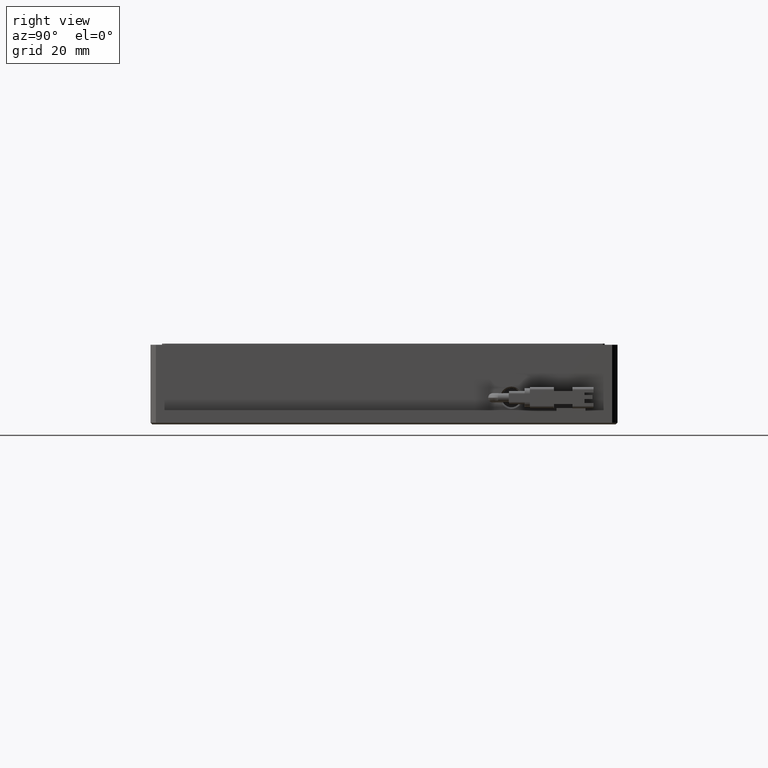
[diagram: clean part render]
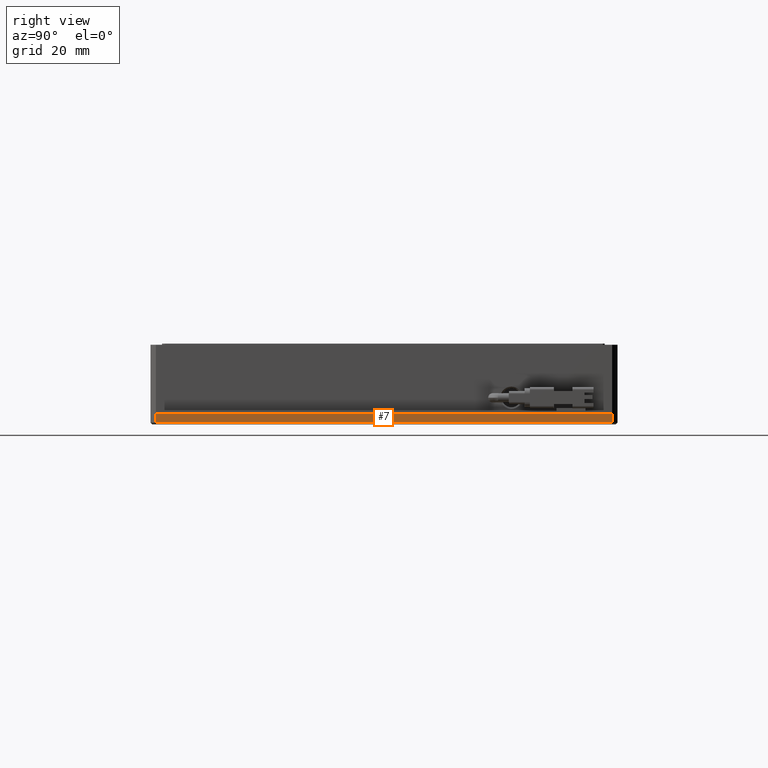
[diagram: same view with one face highlighted and labeled with its STEP entity id]
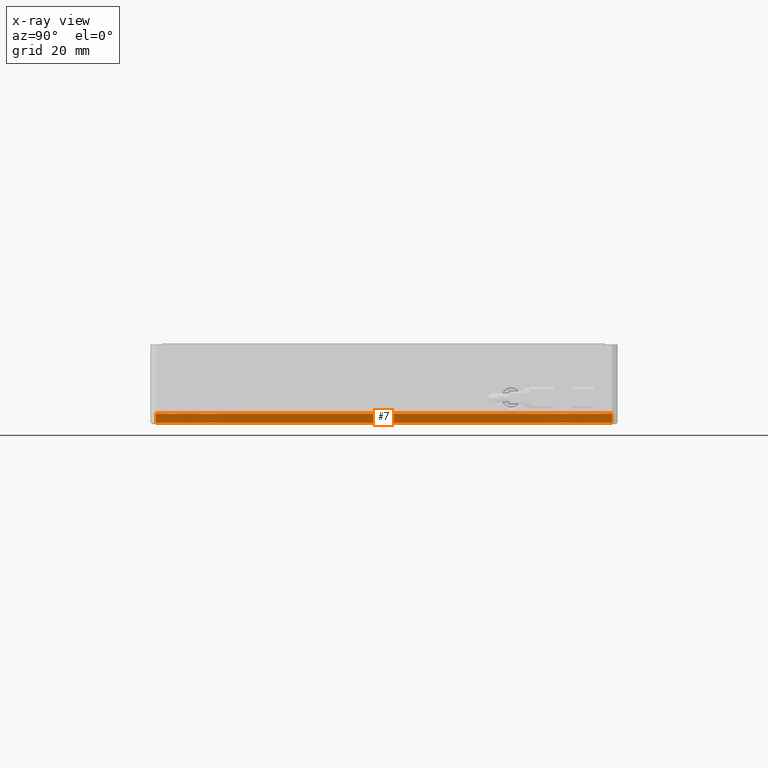
[diagram: x-ray of the same camera — body ghosted, the highlighted face saturated]
A machine part, right view. The second image highlights one B-rep face of the part: STEP entity #7.
The next image is the same camera in x-ray: the body ghosted, the highlighted face saturated — about 0% of this face is hidden behind the body in this view.
In plain terms, the highlighted planar face has unit normal (-1, 0, 0).
Its self-contained STEP definition (entity closure, byte-faithful):
#7 = ADVANCED_FACE ( 'NONE', ( #12453 ), #5397, .F. ) ;
#209 = EDGE_CURVE ( 'NONE', #2793, #6655, #16696, .T. ) ;
#367 = ORIENTED_EDGE ( 'NONE', *, *, #1497, .F. ) ;
#1497 = EDGE_CURVE ( 'NONE', #16233, #9017, #3066, .T. ) ;
#1981 = EDGE_CURVE ( 'NONE', #9017, #2793, #7563, .T. ) ;
#2560 = VECTOR ( 'NONE', #4152, 1000.000000000000000 ) ;
#2793 = VERTEX_POINT ( 'NONE', #16303 ) ;
#2864 = DIRECTION ( 'NONE',  ( -0.0000000000000000000, -1.000000000000000000, -0.0000000000000000000 ) ) ;
#3066 = LINE ( 'NONE', #6483, #17171 ) ;
#3387 = ORIENTED_EDGE ( 'NONE', *, *, #10057, .T. ) ;
#4152 = DIRECTION ( 'NONE',  ( 0.0000000000000000000, 0.0000000000000000000, 1.000000000000000000 ) ) ;
#4452 = CARTESIAN_POINT ( 'NONE',  ( 67.05231004200074100, -47.20007636502479900, -4.547577592273199800E-012 ) ) ;
#5177 = DIRECTION ( 'NONE',  ( -0.0000000000000000000, -0.0000000000000000000, -1.000000000000000000 ) ) ;
#5397 = PLANE ( 'NONE',  #11556 ) ;
#6483 = CARTESIAN_POINT ( 'NONE',  ( 67.05231004200074100, 38.79992363497520800, -4.547577592273199800E-012 ) ) ;
#6655 = VERTEX_POINT ( 'NONE', #4452 ) ;
#7205 = LINE ( 'NONE', #8382, #17632 ) ;
#7563 = LINE ( 'NONE', #16636, #17562 ) ;
#7872 = ORIENTED_EDGE ( 'NONE', *, *, #1981, .F. ) ;
#8382 = CARTESIAN_POINT ( 'NONE',  ( 67.05231004200074100, 39.79992363497521500, -4.547577592273199800E-012 ) ) ;
#9017 = VERTEX_POINT ( 'NONE', #15588 ) ;
#10057 = EDGE_CURVE ( 'NONE', #16233, #6655, #7205, .T. ) ;
#10709 = EDGE_LOOP ( 'NONE', ( #7872, #367, #3387, #11260 ) ) ;
#10774 = CARTESIAN_POINT ( 'NONE',  ( 67.05231004200074100, -48.20007636502478500, -4.547577592273199800E-012 ) ) ;
#11260 = ORIENTED_EDGE ( 'NONE', *, *, #209, .F. ) ;
#11556 = AXIS2_PLACEMENT_3D ( 'NONE', #10774, #16359, #12512 ) ;
#11699 = CARTESIAN_POINT ( 'NONE',  ( 67.05231004200074100, -47.20007636502479900, -4.547577592273199800E-012 ) ) ;
#12453 = FACE_OUTER_BOUND ( 'NONE', #10709, .T. ) ;
#12512 = DIRECTION ( 'NONE',  ( 0.0000000000000000000, 0.0000000000000000000, 1.000000000000000000 ) ) ;
#13660 = CARTESIAN_POINT ( 'NONE',  ( 67.05231004200074100, 38.79992363497520800, -4.547577592273199800E-012 ) ) ;
#14798 = DIRECTION ( 'NONE',  ( -0.0000000000000000000, -1.000000000000000000, 0.0000000000000000000 ) ) ;
#15588 = CARTESIAN_POINT ( 'NONE',  ( 67.05231004200074100, 38.79992363497520800, -1.700000000004544500 ) ) ;
#16233 = VERTEX_POINT ( 'NONE', #13660 ) ;
#16303 = CARTESIAN_POINT ( 'NONE',  ( 67.05231004200074100, -47.20007636502479900, -1.700000000004553400 ) ) ;
#16359 = DIRECTION ( 'NONE',  ( -1.000000000000000000, 0.0000000000000000000, 0.0000000000000000000 ) ) ;
#16636 = CARTESIAN_POINT ( 'NONE',  ( 67.05231004200074100, -48.20007636502478500, -1.700000000004553000 ) ) ;
#16696 = LINE ( 'NONE', #11699, #2560 ) ;
#17171 = VECTOR ( 'NONE', #5177, 1000.000000000000000 ) ;
#17562 = VECTOR ( 'NONE', #14798, 1000.000000000000000 ) ;
#17632 = VECTOR ( 'NONE', #2864, 1000.000000000000000 ) ;